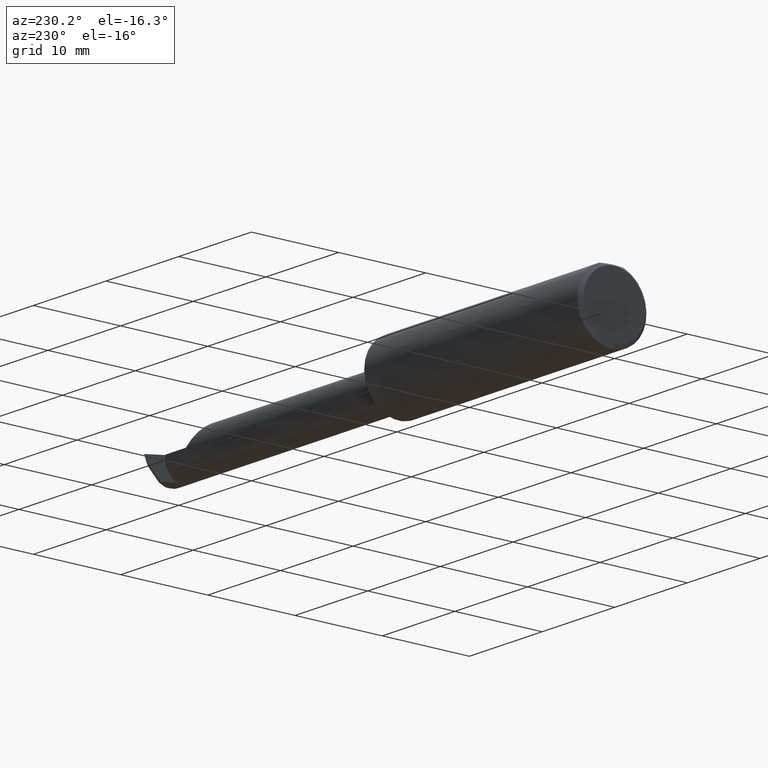
[diagram: clean part render]
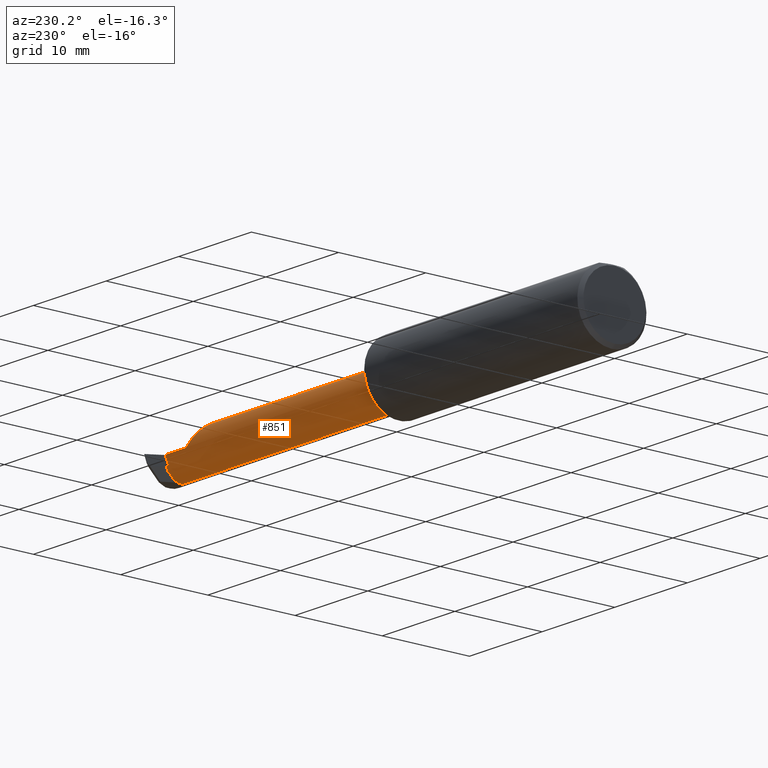
[diagram: same view with one face highlighted and labeled with its STEP entity id]
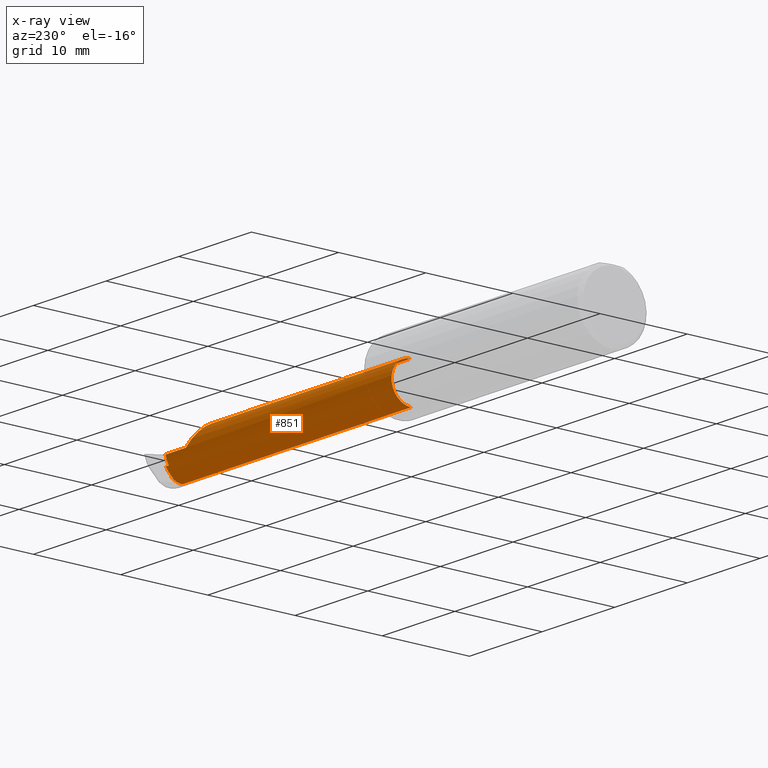
[diagram: x-ray of the same camera — body ghosted, the highlighted face saturated]
A machine part, auxiliary view. The second image highlights one B-rep face of the part: STEP entity #851.
The next image is the same camera in x-ray: the body ghosted, the highlighted face saturated — about 1% of this face is hidden behind the body in this view.
In plain terms, the highlighted cylindrical surface (edge-blend (fillet) strip) has radius 2.2352 mm, axis along (-1, -0, -0).
Its self-contained STEP definition (entity closure, byte-faithful):
#40 = AXIS2_PLACEMENT_3D ( 'NONE', #280, #64, #436 ) ;
#55 = CARTESIAN_POINT ( 'NONE',  ( 2.432412366617116461, -0.01878513696056283502, -0.06677579258062492362 ) ) ;
#64 = DIRECTION ( 'NONE',  ( -1.000000000000000000, -0.000000000000000000, -0.000000000000000000 ) ) ;
#77 = CARTESIAN_POINT ( 'NONE',  ( 1.170000000000000151, -0.07609999999999990383, 0.000000000000000000 ) ) ;
#78 = CARTESIAN_POINT ( 'NONE',  ( 2.429234505209546313, -0.03568306677792929676, -0.07816950498066803366 ) ) ;
#93 = EDGE_CURVE ( 'NONE', #754, #320, #316, .T. ) ;
#95 = DIRECTION ( 'NONE',  ( 1.000000000000000000, 0.000000000000000000, 0.000000000000000000 ) ) ;
#97 = CARTESIAN_POINT ( 'NONE',  ( 2.419954283310243426, 0.01190000000000008412, 0.000000000000000000 ) ) ;
#103 = CARTESIAN_POINT ( 'NONE',  ( 2.434153716850806504, -0.03491348145713581153, -0.08061904056241102345 ) ) ;
#107 = CARTESIAN_POINT ( 'NONE',  ( 2.417409961610213376, 0.01190000000000008586, -0.01372793142950701900 ) ) ;
#111 = EDGE_CURVE ( 'NONE', #965, #304, #878, .T. ) ;
#118 = CARTESIAN_POINT ( 'NONE',  ( 2.222100000000000186, -0.02459722810174531579, 0.08800000000000000877 ) ) ;
#133 = LINE ( 'NONE', #598, #543 ) ;
#141 = EDGE_CURVE ( 'NONE', #965, #362, #933, .T. ) ;
#142 = CARTESIAN_POINT ( 'NONE',  ( 2.310000000000000053, 0.01190000000000008412, -3.979970649922725226E-17 ) ) ;
#143 = DIRECTION ( 'NONE',  ( 1.000000000000000000, 0.000000000000000000, 0.000000000000000000 ) ) ;
#165 = AXIS2_PLACEMENT_3D ( 'NONE', #887, #375, #212 ) ;
#172 = CARTESIAN_POINT ( 'NONE',  ( 2.310000000000000053, 0.01189994318180000350, 9.999999999973052634E-05 ) ) ;
#181 = CARTESIAN_POINT ( 'NONE',  ( 2.429166679617513314, 0.002603915574193653177, -0.03936614882472369570 ) ) ;
#196 = ORIENTED_EDGE ( 'NONE', *, *, #93, .F. ) ;
#203 = CYLINDRICAL_SURFACE ( 'NONE', #527, 0.08799999999999999489 ) ;
#204 = CARTESIAN_POINT ( 'NONE',  ( 2.429166679617513314, 0.002603915574193653177, -0.03936614882472369570 ) ) ;
#212 = DIRECTION ( 'NONE',  ( 0.000000000000000000, 0.000000000000000000, 1.000000000000000000 ) ) ;
#227 = VECTOR ( 'NONE', #952, 39.37007874015748143 ) ;
#238 = EDGE_CURVE ( 'NONE', #623, #813, #480, .T. ) ;
#271 =( BOUNDED_CURVE ( )  B_SPLINE_CURVE ( 3, ( #564, #867, #118, #359 ),
 .UNSPECIFIED., .F., .T. ) 
 B_SPLINE_CURVE_WITH_KNOTS ( ( 4, 4 ),
 ( 4.713525344265619310, 6.283185307179586232 ),
 .UNSPECIFIED. ) 
 CURVE ( )  GEOMETRIC_REPRESENTATION_ITEM ( )  RATIONAL_B_SPLINE_CURVE ( ( 1.000000000000000000, 0.8050056215533928361, 0.8050056215533928361, 1.000000000000000000 ) ) 
 REPRESENTATION_ITEM ( '' )  );
#276 = AXIS2_PLACEMENT_3D ( 'NONE', #771, #95, #474 ) ;
#280 = CARTESIAN_POINT ( 'NONE',  ( 2.429234505209546313, -0.07609999999999990383, 0.000000000000000000 ) ) ;
#282 = ORIENTED_EDGE ( 'NONE', *, *, #563, .T. ) ;
#285 = FACE_OUTER_BOUND ( 'NONE', #379, .T. ) ;
#297 = ORIENTED_EDGE ( 'NONE', *, *, #238, .F. ) ;
#304 = VERTEX_POINT ( 'NONE', #833 ) ;
#306 = VERTEX_POINT ( 'NONE', #78 ) ;
#316 =( BOUNDED_CURVE ( )  B_SPLINE_CURVE ( 3, ( #485, #348, #107, #343 ),
 .UNSPECIFIED., .F., .F. ) 
 B_SPLINE_CURVE_WITH_KNOTS ( ( 4, 4 ),
 ( 1.107004480862656681, 1.570796326794896780 ),
 .UNSPECIFIED. ) 
 CURVE ( )  GEOMETRIC_REPRESENTATION_ITEM ( )  RATIONAL_B_SPLINE_CURVE ( ( 1.000000000000000000, 0.9821549450057673880, 0.9821549450057673880, 1.000000000000000000 ) ) 
 REPRESENTATION_ITEM ( '' )  );
#320 = VERTEX_POINT ( 'NONE', #97 ) ;
#343 = CARTESIAN_POINT ( 'NONE',  ( 2.419954283310243426, 0.01190000000000008412, 0.000000000000000000 ) ) ;
#348 = CARTESIAN_POINT ( 'NONE',  ( 2.414933745251173214, 0.008745004116347428885, -0.02708839932203915488 ) ) ;
#359 = CARTESIAN_POINT ( 'NONE',  ( 2.222100000000000186, -0.07609999999999990383, 0.08799999999999999489 ) ) ;
#362 = VERTEX_POINT ( 'NONE', #544 ) ;
#364 = DIRECTION ( 'NONE',  ( -1.000000000000000000, -0.000000000000000000, -0.000000000000000000 ) ) ;
#371 = CARTESIAN_POINT ( 'NONE',  ( 2.435706988345931467, -0.07609999999999991771, -0.08799999999999999489 ) ) ;
#374 =( BOUNDED_CURVE ( )  B_SPLINE_CURVE ( 3, ( #981, #820, #520, #55 ),
 .UNSPECIFIED., .F., .F. ) 
 B_SPLINE_CURVE_WITH_KNOTS ( ( 4, 4 ),
 ( 2.833382725121767365, 3.065497789749004109 ),
 .UNSPECIFIED. ) 
 CURVE ( )  GEOMETRIC_REPRESENTATION_ITEM ( )  RATIONAL_B_SPLINE_CURVE ( ( 1.000000000000000000, 0.9955152536748566039, 0.9955152536748566039, 1.000000000000000000 ) ) 
 REPRESENTATION_ITEM ( '' )  );
#375 = DIRECTION ( 'NONE',  ( -1.000000000000000000, -0.000000000000000000, -0.000000000000000000 ) ) ;
#379 = EDGE_LOOP ( 'NONE', ( #852, #761, #907, #512, #434, #642, #955, #196, #670, #297, #282, #984, #387 ) ) ;
#382 = CARTESIAN_POINT ( 'NONE',  ( 2.429320997292268913, 0.001907488210050582332, -0.04072875867441653336 ) ) ;
#387 = ORIENTED_EDGE ( 'NONE', *, *, #920, .T. ) ;
#413 = CARTESIAN_POINT ( 'NONE',  ( 1.170000000000000151, -0.07609999999999990383, -0.08799999999999999489 ) ) ;
#434 = ORIENTED_EDGE ( 'NONE', *, *, #437, .F. ) ;
#436 = DIRECTION ( 'NONE',  ( 0.000000000000000000, 2.619314482561616287E-15, -1.000000000000000000 ) ) ;
#437 = EDGE_CURVE ( 'NONE', #778, #951, #271, .T. ) ;
#446 = CARTESIAN_POINT ( 'NONE',  ( 2.429263517957858998, 0.002015706958081355492, -0.04052098279880220200 ) ) ;
#450 = VERTEX_POINT ( 'NONE', #658 ) ;
#453 = CARTESIAN_POINT ( 'NONE',  ( 2.429269691807145470, 0.002143576999667569545, -0.04027657957365365915 ) ) ;
#468 = EDGE_CURVE ( 'NONE', #951, #692, #793, .T. ) ;
#474 = DIRECTION ( 'NONE',  ( 0.000000000000000000, 0.000000000000000000, -1.000000000000000000 ) ) ;
#480 =( BOUNDED_CURVE ( )  B_SPLINE_CURVE ( 3, ( #608, #453, #876, #204 ),
 .UNSPECIFIED., .F., .F. ) 
 B_SPLINE_CURVE_WITH_KNOTS ( ( 4, 4 ),
 ( 4.414467090619113243, 4.431856705911858541 ),
 .UNSPECIFIED. ) 
 CURVE ( )  GEOMETRIC_REPRESENTATION_ITEM ( )  RATIONAL_B_SPLINE_CURVE ( ( 1.000000000000000000, 0.9999748002654224033, 0.9999748002654224033, 1.000000000000000000 ) ) 
 REPRESENTATION_ITEM ( '' )  );
#485 = CARTESIAN_POINT ( 'NONE',  ( 2.412658198884436445, 0.002603915574193138831, -0.03936614882472368182 ) ) ;
#512 = ORIENTED_EDGE ( 'NONE', *, *, #468, .F. ) ;
#514 = CARTESIAN_POINT ( 'NONE',  ( 2.429320997292268913, 0.001907488210050582332, -0.04072875867441653336 ) ) ;
#520 = CARTESIAN_POINT ( 'NONE',  ( 2.431988790024178559, -0.02396332507398822934, -0.07122032451418516819 ) ) ;
#527 = AXIS2_PLACEMENT_3D ( 'NONE', #77, #904, #976 ) ;
#528 = LINE ( 'NONE', #741, #875 ) ;
#543 = VECTOR ( 'NONE', #364, 39.37007874015748143 ) ;
#544 = CARTESIAN_POINT ( 'NONE',  ( 1.195000000000000062, -0.07609999999999990383, -0.08799999999999999489 ) ) ;
#550 = EDGE_CURVE ( 'NONE', #813, #754, #133, .T. ) ;
#552 = CARTESIAN_POINT ( 'NONE',  ( 1.195000000000000062, -0.07609999999999990383, 0.08799999999999999489 ) ) ;
#561 = CIRCLE ( 'NONE', #276, 0.08799999999999999489 ) ;
#563 = EDGE_CURVE ( 'NONE', #623, #450, #577, .T. ) ;
#564 = CARTESIAN_POINT ( 'NONE',  ( 2.310000000000000053, 0.01189994318180000350, 9.999999999973052634E-05 ) ) ;
#577 =( BOUNDED_CURVE ( )  B_SPLINE_CURVE ( 3, ( #382, #679, #446, #893 ),
 .UNSPECIFIED., .F., .T. ) 
 B_SPLINE_CURVE_WITH_KNOTS ( ( 4, 4 ),
 ( 3.445809355762257553, 3.449802582057818867 ),
 .UNSPECIFIED. ) 
 CURVE ( )  GEOMETRIC_REPRESENTATION_ITEM ( )  RATIONAL_B_SPLINE_CURVE ( ( 1.000000000000000000, 0.9999986711790873617, 0.9999986711790873617, 1.000000000000000000 ) ) 
 REPRESENTATION_ITEM ( '' )  );
#586 = CIRCLE ( 'NONE', #165, 0.08799999999999999489 ) ;
#598 = CARTESIAN_POINT ( 'NONE',  ( 1.170000000000000151, 0.002603915574193116714, -0.03936614882472370958 ) ) ;
#608 = CARTESIAN_POINT ( 'NONE',  ( 2.429320997292268913, 0.001907488210050582332, -0.04072875867441653336 ) ) ;
#612 = EDGE_CURVE ( 'NONE', #778, #665, #586, .T. ) ;
#623 = VERTEX_POINT ( 'NONE', #514 ) ;
#636 = CARTESIAN_POINT ( 'NONE',  ( 2.435706988345931467, -0.07609999999999991771, -0.08799999999999999489 ) ) ;
#642 = ORIENTED_EDGE ( 'NONE', *, *, #612, .T. ) ;
#645 = CARTESIAN_POINT ( 'NONE',  ( 2.432412366617116461, -0.01878513696056283502, -0.06677579258062492362 ) ) ;
#654 = VECTOR ( 'NONE', #707, 39.37007874015748143 ) ;
#658 = CARTESIAN_POINT ( 'NONE',  ( 2.429234505209546313, 0.002069504980668138063, -0.04041693322207059319 ) ) ;
#665 = VERTEX_POINT ( 'NONE', #142 ) ;
#670 = ORIENTED_EDGE ( 'NONE', *, *, #550, .F. ) ;
#679 = CARTESIAN_POINT ( 'NONE',  ( 2.429292348690410552, 0.001961701296111622791, -0.04062492475437107231 ) ) ;
#681 = CARTESIAN_POINT ( 'NONE',  ( 2.222100000000000186, -0.07609999999999990383, 0.08799999999999999489 ) ) ;
#692 = VERTEX_POINT ( 'NONE', #552 ) ;
#701 = CARTESIAN_POINT ( 'NONE',  ( 2.412658198884436445, 0.002603915574193138831, -0.03936614882472368182 ) ) ;
#707 = DIRECTION ( 'NONE',  ( -1.000000000000000000, -0.000000000000000000, -0.000000000000000000 ) ) ;
#741 = CARTESIAN_POINT ( 'NONE',  ( 1.170000000000000151, 0.01190000000000008412, -3.979970649922725226E-17 ) ) ;
#754 = VERTEX_POINT ( 'NONE', #701 ) ;
#761 = ORIENTED_EDGE ( 'NONE', *, *, #141, .T. ) ;
#771 = CARTESIAN_POINT ( 'NONE',  ( 1.195000000000000062, -0.07609999999999990383, 0.000000000000000000 ) ) ;
#778 = VERTEX_POINT ( 'NONE', #172 ) ;
#788 = EDGE_CURVE ( 'NONE', #362, #692, #561, .T. ) ;
#793 = LINE ( 'NONE', #879, #227 ) ;
#813 = VERTEX_POINT ( 'NONE', #181 ) ;
#820 = CARTESIAN_POINT ( 'NONE',  ( 2.430924730852863647, -0.02962134312209247639, -0.07503533801531253600 ) ) ;
#830 = EDGE_CURVE ( 'NONE', #665, #320, #528, .T. ) ;
#833 = CARTESIAN_POINT ( 'NONE',  ( 2.432412366617116461, -0.01878513696056283502, -0.06677579258062492362 ) ) ;
#851 = ADVANCED_FACE ( 'NONE', ( #285 ), #203, .T. ) ;
#852 = ORIENTED_EDGE ( 'NONE', *, *, #111, .F. ) ;
#867 = CARTESIAN_POINT ( 'NONE',  ( 2.258497261355095542, 0.01184141730464296355, 0.05160273864490429879 ) ) ;
#875 = VECTOR ( 'NONE', #143, 39.37007874015748143 ) ;
#876 = CARTESIAN_POINT ( 'NONE',  ( 2.429218251285939267, 0.002375725304457491742, -0.03982236484433202689 ) ) ;
#878 =( BOUNDED_CURVE ( )  B_SPLINE_CURVE ( 3, ( #636, #941, #103, #645 ),
 .UNSPECIFIED., .F., .T. ) 
 B_SPLINE_CURVE_WITH_KNOTS ( ( 4, 4 ),
 ( 3.324852225049199639, 4.034155524605859355 ),
 .UNSPECIFIED. ) 
 CURVE ( )  GEOMETRIC_REPRESENTATION_ITEM ( )  RATIONAL_B_SPLINE_CURVE ( ( 1.000000000000000000, 0.9585116767379837643, 0.9585116767379837643, 1.000000000000000000 ) ) 
 REPRESENTATION_ITEM ( '' )  );
#879 = CARTESIAN_POINT ( 'NONE',  ( 1.170000000000000151, -0.07609999999999990383, 0.08799999999999999489 ) ) ;
#887 = CARTESIAN_POINT ( 'NONE',  ( 2.310000000000000053, -0.07609999999999990383, 0.000000000000000000 ) ) ;
#893 = CARTESIAN_POINT ( 'NONE',  ( 2.429234505209546313, 0.002069504980668138063, -0.04041693322207059319 ) ) ;
#904 = DIRECTION ( 'NONE',  ( -1.000000000000000000, -0.000000000000000000, -0.000000000000000000 ) ) ;
#907 = ORIENTED_EDGE ( 'NONE', *, *, #788, .T. ) ;
#912 = CIRCLE ( 'NONE', #40, 0.08799999999999999489 ) ;
#920 = EDGE_CURVE ( 'NONE', #306, #304, #374, .T. ) ;
#933 = LINE ( 'NONE', #413, #654 ) ;
#941 = CARTESIAN_POINT ( 'NONE',  ( 2.435299459015029644, -0.05484537671739713599, -0.08800000000000000877 ) ) ;
#948 = EDGE_CURVE ( 'NONE', #450, #306, #912, .T. ) ;
#951 = VERTEX_POINT ( 'NONE', #681 ) ;
#952 = DIRECTION ( 'NONE',  ( -1.000000000000000000, -0.000000000000000000, -0.000000000000000000 ) ) ;
#955 = ORIENTED_EDGE ( 'NONE', *, *, #830, .T. ) ;
#965 = VERTEX_POINT ( 'NONE', #371 ) ;
#976 = DIRECTION ( 'NONE',  ( 0.000000000000000000, 0.000000000000000000, 1.000000000000000000 ) ) ;
#981 = CARTESIAN_POINT ( 'NONE',  ( 2.429234505209546313, -0.03568306677792929676, -0.07816950498066803366 ) ) ;
#984 = ORIENTED_EDGE ( 'NONE', *, *, #948, .T. ) ;